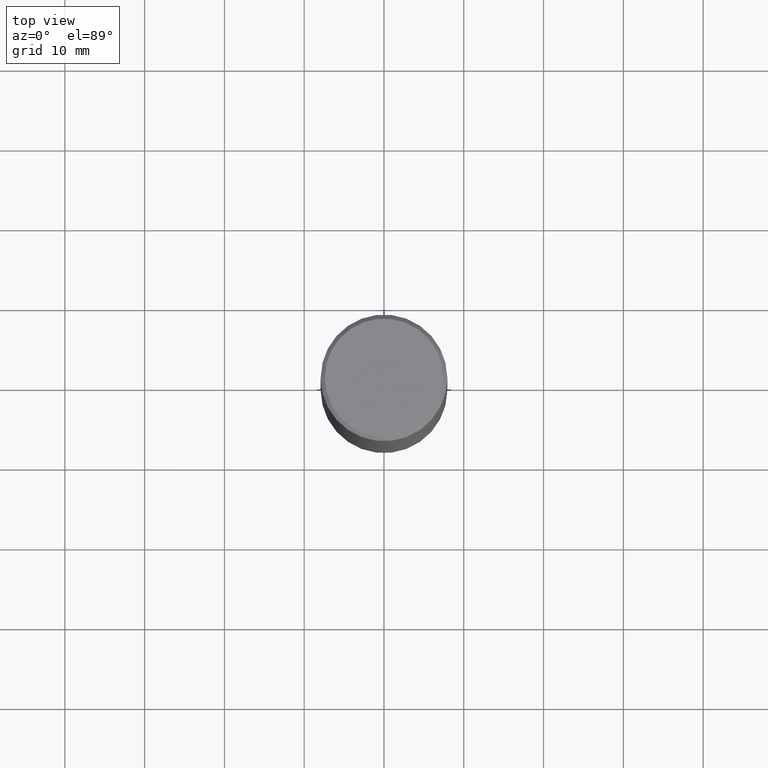
[diagram: clean part render]
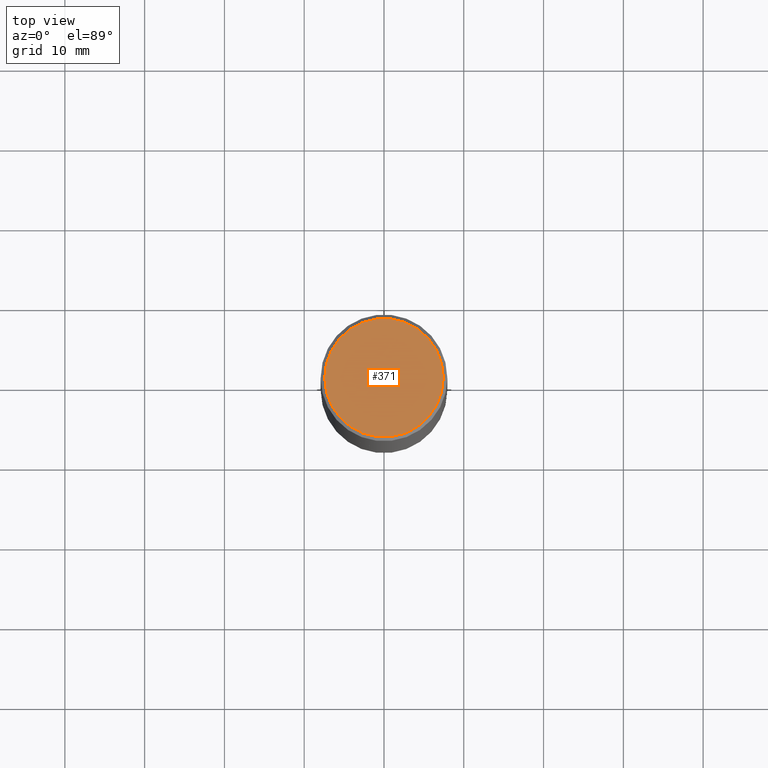
[diagram: same view with one face highlighted and labeled with its STEP entity id]
A machine part, top view. The second image highlights one B-rep face of the part: STEP entity #371.
In plain terms, the highlighted planar face has unit normal (0, -0, -1).
Its self-contained STEP definition (entity closure, byte-faithful):
#7 = CIRCLE ( 'NONE', #29, 0.2924999999999993716 ) ;
#11 = CARTESIAN_POINT ( 'NONE',  ( -1.043851414335219820E-46, 1.490343170380447200E-32, 4.268512490100411279E-18 ) ) ;
#17 = DIRECTION ( 'NONE',  ( -2.445468806185136597E-29, 3.491481338843145583E-15, 1.000000000000000000 ) ) ;
#18 = EDGE_CURVE ( 'NONE', #230, #243, #7, .T. ) ;
#29 = AXIS2_PLACEMENT_3D ( 'NONE', #254, #17, #167 ) ;
#50 = DIRECTION ( 'NONE',  ( -2.445468806185136597E-29, 3.491481338843145583E-15, 1.000000000000000000 ) ) ;
#55 = DIRECTION ( 'NONE',  ( 2.438088387897960049E-29, -3.491481338843145188E-15, -1.000000000000000000 ) ) ;
#87 = ORIENTED_EDGE ( 'NONE', *, *, #18, .T. ) ;
#130 = CARTESIAN_POINT ( 'NONE',  ( 2.042516583223228201E-15, 0.2924999999999993716, -1.019124035366567634E-15 ) ) ;
#162 = AXIS2_PLACEMENT_3D ( 'NONE', #11, #50, #169 ) ;
#167 = DIRECTION ( 'NONE',  ( 1.000000000000000000, -6.982962677686266711E-15, 4.876067333457700127E-29 ) ) ;
#169 = DIRECTION ( 'NONE',  ( 1.000000000000000000, -6.982962677686266711E-15, 4.876067333457700127E-29 ) ) ;
#221 = AXIS2_PLACEMENT_3D ( 'NONE', #130, #55, #357 ) ;
#230 = VERTEX_POINT ( 'NONE', #350 ) ;
#243 = VERTEX_POINT ( 'NONE', #424 ) ;
#248 = PLANE ( 'NONE',  #221 ) ;
#254 = CARTESIAN_POINT ( 'NONE',  ( -1.043851414335219820E-46, 1.490343170380447200E-32, 4.268512490100411279E-18 ) ) ;
#295 = EDGE_CURVE ( 'NONE', #243, #230, #418, .T. ) ;
#300 = ORIENTED_EDGE ( 'NONE', *, *, #295, .T. ) ;
#342 = EDGE_LOOP ( 'NONE', ( #300, #87 ) ) ;
#350 = CARTESIAN_POINT ( 'NONE',  ( 0.2924999999999993716, -2.110215457714315987E-15, 4.268512490114932791E-18 ) ) ;
#357 = DIRECTION ( 'NONE',  ( -1.000000000000000000, 6.982962677686265922E-15, -4.876176775795935793E-29 ) ) ;
#371 = ADVANCED_FACE ( 'NONE', ( #463 ), #248, .F. ) ;
#418 = CIRCLE ( 'NONE', #162, 0.2924999999999993716 ) ;
#424 = CARTESIAN_POINT ( 'NONE',  ( -0.2924999999999993716, 2.077431396611659850E-15, 4.268512490086005323E-18 ) ) ;
#463 = FACE_OUTER_BOUND ( 'NONE', #342, .T. ) ;